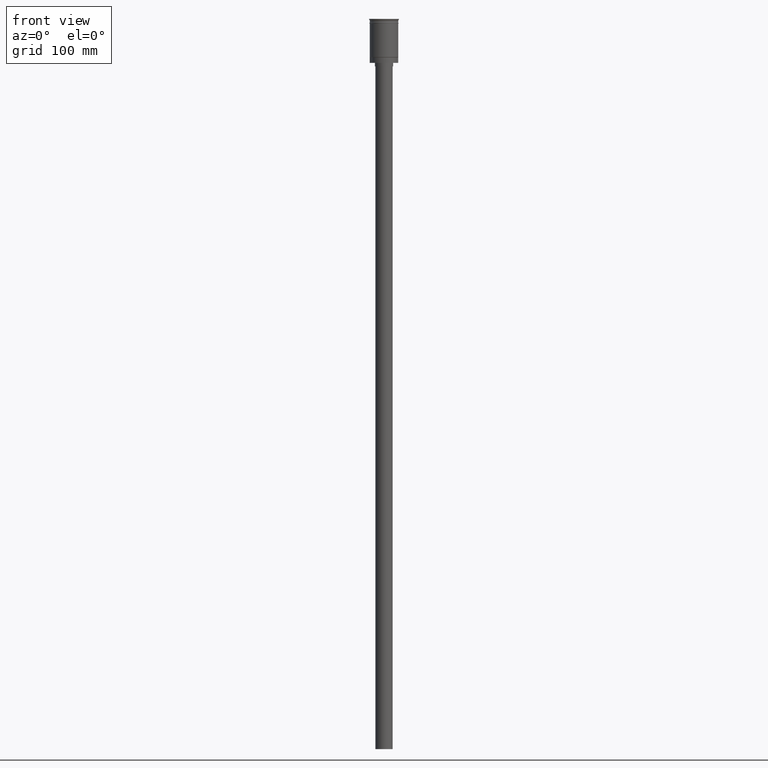
[diagram: clean part render]
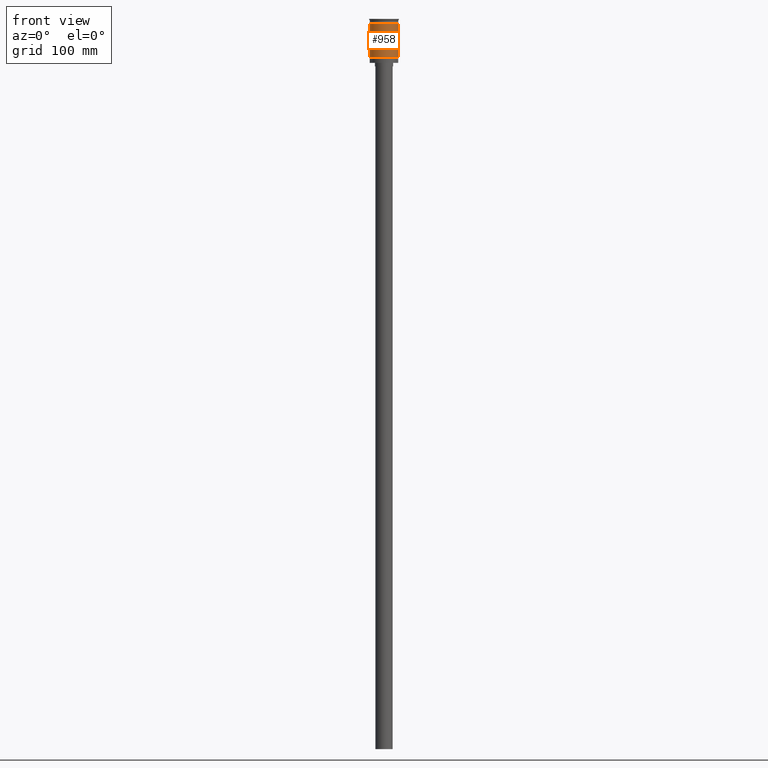
[diagram: same view with one face highlighted and labeled with its STEP entity id]
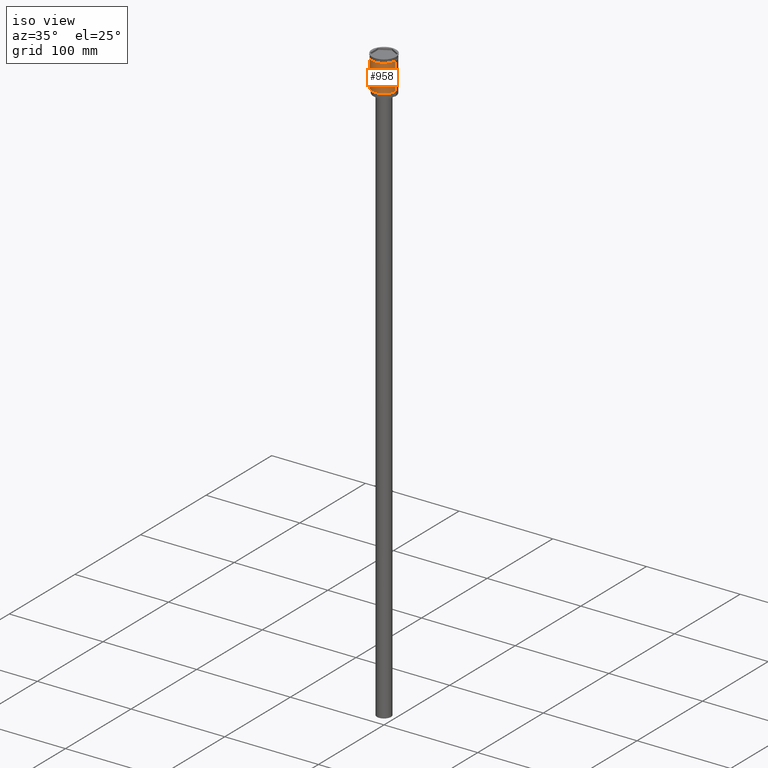
[diagram: same view with one face highlighted and labeled with its STEP entity id]
A machine part, front view. The second image highlights one B-rep face of the part: STEP entity #958.
A second angle (iso view) of the same face is appended — the face is thin or edge-on in the first view.
In plain terms, the highlighted cylindrical surface (edge-blend (fillet) strip) has radius 12.5 mm, axis along (-0, -0, 1).
Its self-contained STEP definition (entity closure, byte-faithful):
#31 = ORIENTED_EDGE ( 'NONE', *, *, #1286, .F. ) ;
#38 = AXIS2_PLACEMENT_3D ( 'NONE', #382, #1161, #1264 ) ;
#110 = DIRECTION ( 'NONE',  ( -0.000000000000000000, -0.000000000000000000, 1.000000000000000000 ) ) ;
#147 = DIRECTION ( 'NONE',  ( -0.000000000000000000, -0.000000000000000000, 1.000000000000000000 ) ) ;
#254 = CARTESIAN_POINT ( 'NONE',  ( 0.000000000000000000, 0.000000000000000000, -33.30000000000005400 ) ) ;
#288 = CIRCLE ( 'NONE', #491, 12.49999999999999645 ) ;
#289 = VERTEX_POINT ( 'NONE', #1379 ) ;
#382 = CARTESIAN_POINT ( 'NONE',  ( 0.000000000000000000, 0.000000000000000000, -3.999999999999996447 ) ) ;
#385 = DIRECTION ( 'NONE',  ( -1.000000000000000000, 0.000000000000000000, 0.000000000000000000 ) ) ;
#417 = DIRECTION ( 'NONE',  ( -0.000000000000000000, -0.000000000000000000, 1.000000000000000000 ) ) ;
#421 = AXIS2_PLACEMENT_3D ( 'NONE', #652, #147, #1022 ) ;
#491 = AXIS2_PLACEMENT_3D ( 'NONE', #254, #750, #385 ) ;
#506 = CARTESIAN_POINT ( 'NONE',  ( 12.49999999999999645, 1.530808498934191127E-15, -33.30000000000005400 ) ) ;
#652 = CARTESIAN_POINT ( 'NONE',  ( 0.000000000000000000, 0.000000000000000000, 0.000000000000000000 ) ) ;
#707 = VECTOR ( 'NONE', #417, 1000.000000000000000 ) ;
#747 = LINE ( 'NONE', #1210, #1089 ) ;
#750 = DIRECTION ( 'NONE',  ( -0.000000000000000000, -0.000000000000000000, 1.000000000000000000 ) ) ;
#799 = VERTEX_POINT ( 'NONE', #1315 ) ;
#944 = EDGE_CURVE ( 'NONE', #289, #1402, #288, .T. ) ;
#958 = ADVANCED_FACE ( 'NONE', ( #1468 ), #1139, .T. ) ;
#971 = ORIENTED_EDGE ( 'NONE', *, *, #1417, .T. ) ;
#1006 = LINE ( 'NONE', #1504, #707 ) ;
#1022 = DIRECTION ( 'NONE',  ( 1.000000000000000000, 0.000000000000000000, 0.000000000000000000 ) ) ;
#1089 = VECTOR ( 'NONE', #110, 1000.000000000000000 ) ;
#1139 = CYLINDRICAL_SURFACE ( 'NONE', #421, 12.49999999999999645 ) ;
#1161 = DIRECTION ( 'NONE',  ( -0.000000000000000000, -0.000000000000000000, 1.000000000000000000 ) ) ;
#1210 = CARTESIAN_POINT ( 'NONE',  ( -12.49999999999999645, 1.530808498934191127E-15, 0.000000000000000000 ) ) ;
#1264 = DIRECTION ( 'NONE',  ( 1.000000000000000000, 0.000000000000000000, 0.000000000000000000 ) ) ;
#1286 = EDGE_CURVE ( 'NONE', #289, #1357, #747, .T. ) ;
#1307 = EDGE_LOOP ( 'NONE', ( #31, #1425, #971, #1340 ) ) ;
#1315 = CARTESIAN_POINT ( 'NONE',  ( 12.49999999999999822, 0.000000000000000000, -3.999999999999996447 ) ) ;
#1340 = ORIENTED_EDGE ( 'NONE', *, *, #1466, .F. ) ;
#1352 = CIRCLE ( 'NONE', #38, 12.49999999999999822 ) ;
#1357 = VERTEX_POINT ( 'NONE', #1457 ) ;
#1379 = CARTESIAN_POINT ( 'NONE',  ( -12.49999999999999289, 0.000000000000000000, -33.30000000000005400 ) ) ;
#1402 = VERTEX_POINT ( 'NONE', #506 ) ;
#1417 = EDGE_CURVE ( 'NONE', #1402, #799, #1006, .T. ) ;
#1425 = ORIENTED_EDGE ( 'NONE', *, *, #944, .T. ) ;
#1457 = CARTESIAN_POINT ( 'NONE',  ( -12.50000000000000000, 1.530808498934191521E-15, -3.999999999999996447 ) ) ;
#1466 = EDGE_CURVE ( 'NONE', #1357, #799, #1352, .T. ) ;
#1468 = FACE_OUTER_BOUND ( 'NONE', #1307, .T. ) ;
#1504 = CARTESIAN_POINT ( 'NONE',  ( 12.49999999999999645, 0.000000000000000000, 0.000000000000000000 ) ) ;